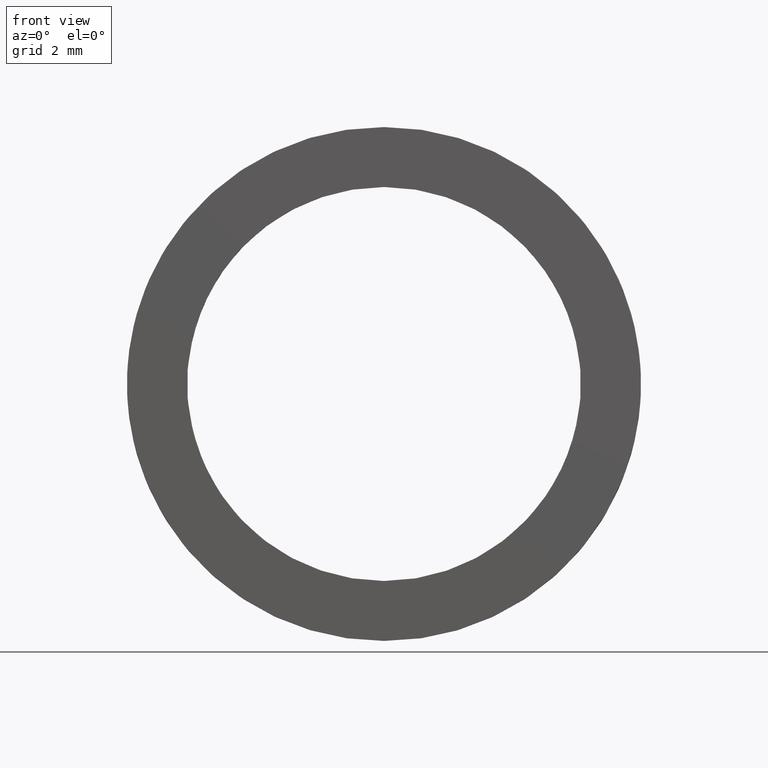
[diagram: clean part render]
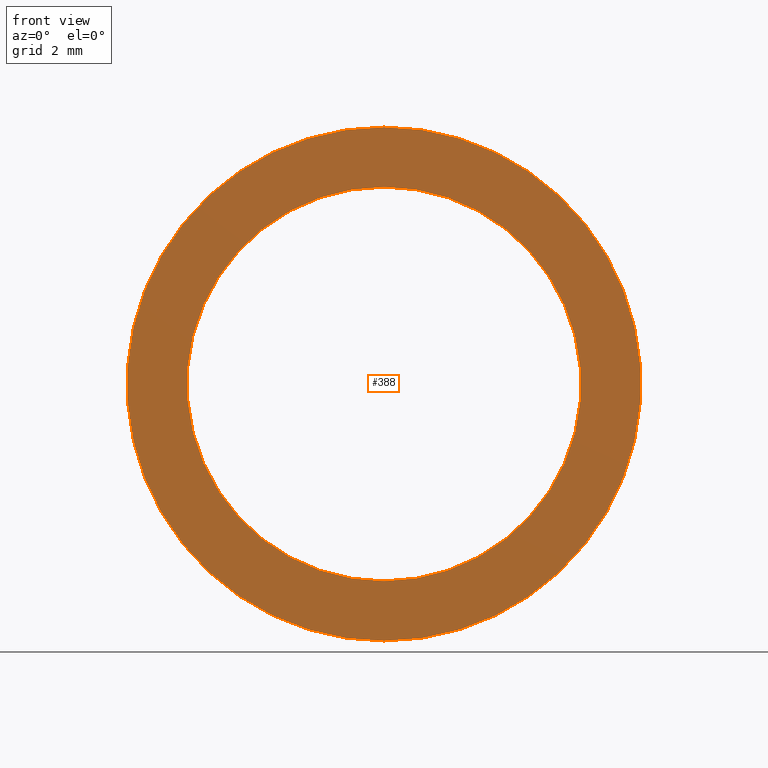
[diagram: same view with one face highlighted and labeled with its STEP entity id]
A machine part, front view. The second image highlights one B-rep face of the part: STEP entity #388.
In plain terms, the highlighted planar face has unit normal (-0, 1, 0).
Its self-contained STEP definition (entity closure, byte-faithful):
#19 = CIRCLE ( 'NONE', #69, 5.750000000000008900 ) ;
#35 = DIRECTION ( 'NONE',  ( -0.0000000000000000000, 1.000000000000000000, -0.0000000000000000000 ) ) ;
#36 = PLANE ( 'NONE',  #143 ) ;
#38 = CARTESIAN_POINT ( 'NONE',  ( 0.0000000000000000000, -4.464249787179428900, 7.500000000000007100 ) ) ;
#44 = CARTESIAN_POINT ( 'NONE',  ( 5.750000000000008900, -4.464249787179429800, 0.0000000000000000000 ) ) ;
#50 = AXIS2_PLACEMENT_3D ( 'NONE', #506, #222, #412 ) ;
#65 = CIRCLE ( 'NONE', #321, 7.500000000000007100 ) ;
#69 = AXIS2_PLACEMENT_3D ( 'NONE', #82, #588, #175 ) ;
#82 = CARTESIAN_POINT ( 'NONE',  ( 0.0000000000000000000, -4.464249787179428900, 0.0000000000000000000 ) ) ;
#111 = CIRCLE ( 'NONE', #469, 5.750000000000008900 ) ;
#120 = FACE_OUTER_BOUND ( 'NONE', #522, .T. ) ;
#143 = AXIS2_PLACEMENT_3D ( 'NONE', #44, #403, #358 ) ;
#150 = CIRCLE ( 'NONE', #50, 7.500000000000007100 ) ;
#153 = VERTEX_POINT ( 'NONE', #197 ) ;
#173 = DIRECTION ( 'NONE',  ( 0.0000000000000000000, 0.0000000000000000000, 1.000000000000000000 ) ) ;
#175 = DIRECTION ( 'NONE',  ( 0.0000000000000000000, 0.0000000000000000000, 1.000000000000000000 ) ) ;
#197 = CARTESIAN_POINT ( 'NONE',  ( 9.184850993605157800E-016, -4.464249787179428900, -7.500000000000007100 ) ) ;
#209 = CARTESIAN_POINT ( 'NONE',  ( 0.0000000000000000000, -4.464249787179428900, 5.750000000000008900 ) ) ;
#222 = DIRECTION ( 'NONE',  ( -0.0000000000000000000, 1.000000000000000000, -0.0000000000000000000 ) ) ;
#276 = EDGE_CURVE ( 'NONE', #574, #291, #111, .T. ) ;
#291 = VERTEX_POINT ( 'NONE', #209 ) ;
#296 = VERTEX_POINT ( 'NONE', #38 ) ;
#304 = CARTESIAN_POINT ( 'NONE',  ( 0.0000000000000000000, -4.464249787179428900, 0.0000000000000000000 ) ) ;
#308 = ORIENTED_EDGE ( 'NONE', *, *, #551, .F. ) ;
#321 = AXIS2_PLACEMENT_3D ( 'NONE', #453, #503, #173 ) ;
#326 = EDGE_LOOP ( 'NONE', ( #354, #569 ) ) ;
#337 = ORIENTED_EDGE ( 'NONE', *, *, #525, .F. ) ;
#343 = DIRECTION ( 'NONE',  ( 0.0000000000000000000, 0.0000000000000000000, 1.000000000000000000 ) ) ;
#354 = ORIENTED_EDGE ( 'NONE', *, *, #364, .T. ) ;
#358 = DIRECTION ( 'NONE',  ( 0.0000000000000000000, 0.0000000000000000000, 1.000000000000000000 ) ) ;
#364 = EDGE_CURVE ( 'NONE', #291, #574, #19, .T. ) ;
#388 = ADVANCED_FACE ( 'NONE', ( #120, #484 ), #36, .F. ) ;
#403 = DIRECTION ( 'NONE',  ( -0.0000000000000000000, 1.000000000000000000, 0.0000000000000000000 ) ) ;
#405 = CARTESIAN_POINT ( 'NONE',  ( 7.041719095097292700E-016, -4.464249787179428900, -5.750000000000008900 ) ) ;
#412 = DIRECTION ( 'NONE',  ( 0.0000000000000000000, 0.0000000000000000000, 1.000000000000000000 ) ) ;
#453 = CARTESIAN_POINT ( 'NONE',  ( 0.0000000000000000000, -4.464249787179428900, 0.0000000000000000000 ) ) ;
#469 = AXIS2_PLACEMENT_3D ( 'NONE', #304, #35, #343 ) ;
#484 = FACE_BOUND ( 'NONE', #326, .T. ) ;
#503 = DIRECTION ( 'NONE',  ( -0.0000000000000000000, 1.000000000000000000, -0.0000000000000000000 ) ) ;
#506 = CARTESIAN_POINT ( 'NONE',  ( 0.0000000000000000000, -4.464249787179428900, 0.0000000000000000000 ) ) ;
#522 = EDGE_LOOP ( 'NONE', ( #337, #308 ) ) ;
#525 = EDGE_CURVE ( 'NONE', #296, #153, #150, .T. ) ;
#551 = EDGE_CURVE ( 'NONE', #153, #296, #65, .T. ) ;
#569 = ORIENTED_EDGE ( 'NONE', *, *, #276, .T. ) ;
#574 = VERTEX_POINT ( 'NONE', #405 ) ;
#588 = DIRECTION ( 'NONE',  ( -0.0000000000000000000, 1.000000000000000000, -0.0000000000000000000 ) ) ;